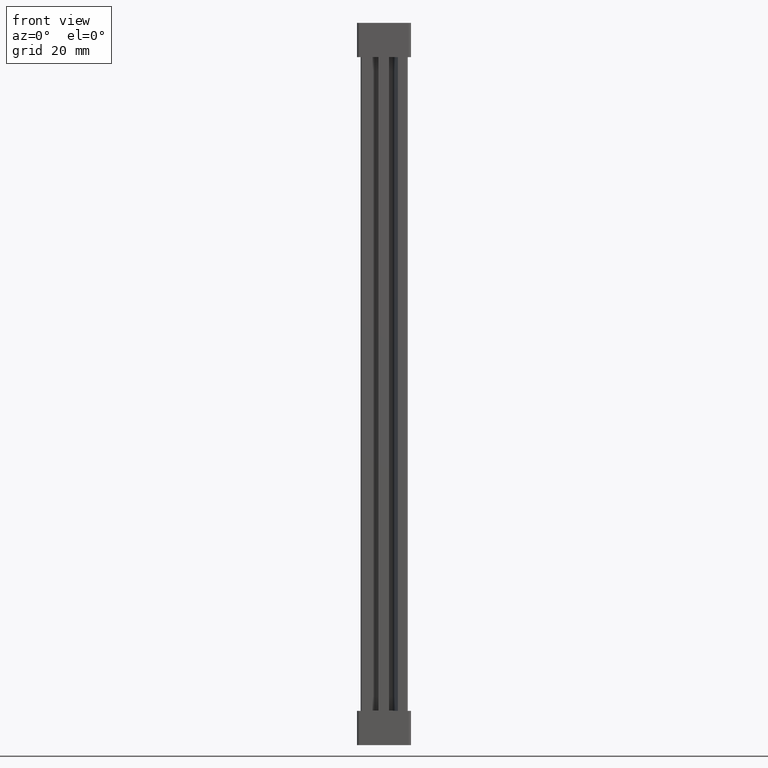
[diagram: clean part render]
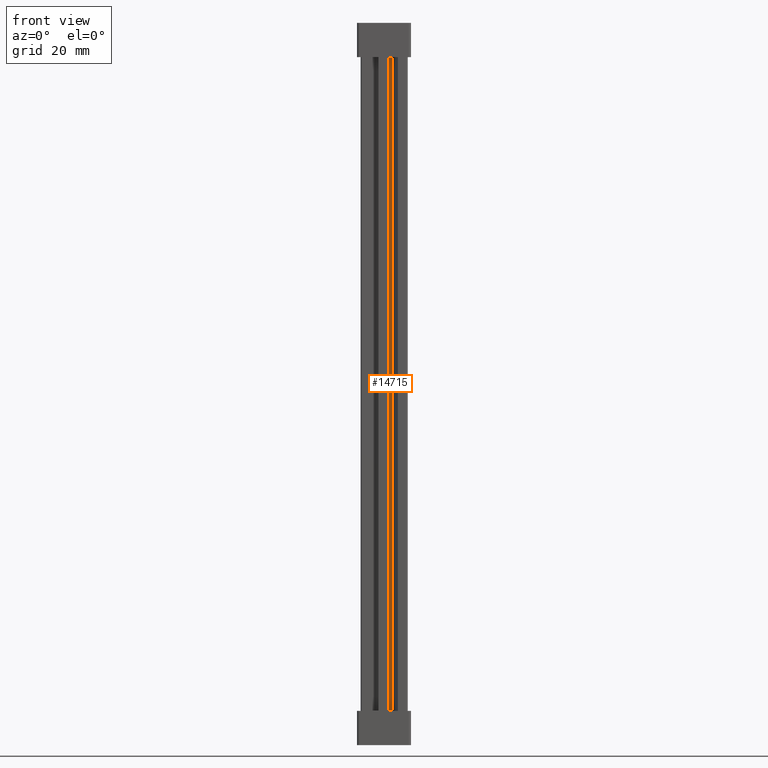
[diagram: same view with one face highlighted and labeled with its STEP entity id]
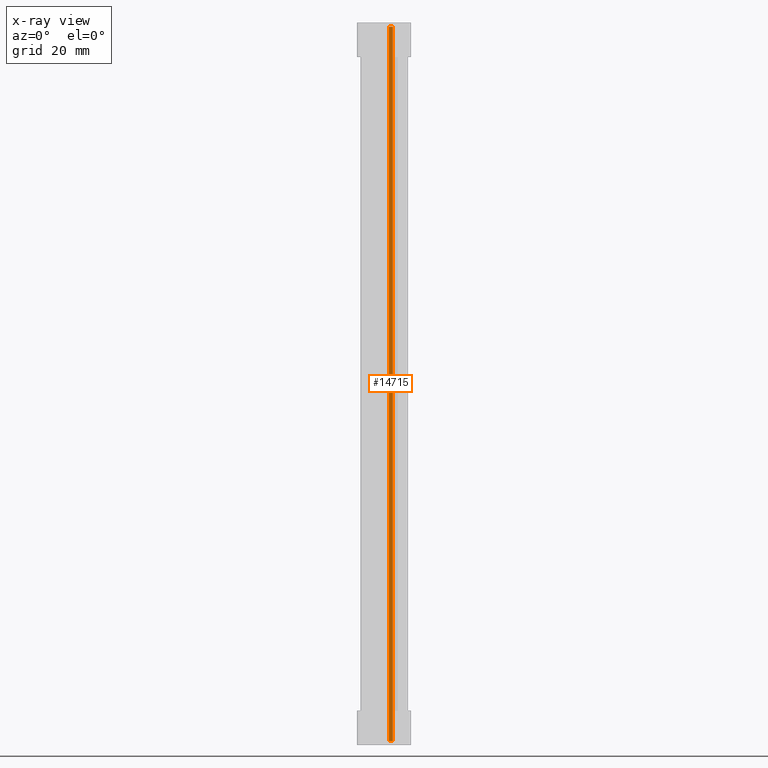
[diagram: x-ray of the same camera — body ghosted, the highlighted face saturated]
A machine part, front view. The second image highlights one B-rep face of the part: STEP entity #14715.
The next image is the same camera in x-ray: the body ghosted, the highlighted face saturated — about 0% of this face is hidden behind the body in this view.
In plain terms, the highlighted planar face has unit normal (0, 1, 0).
Its self-contained STEP definition (entity closure, byte-faithful):
#1179 = CARTESIAN_POINT ( 'NONE',  ( 9.153702168672285900, 5.673275106952144300, 217.8000000000179700 ) ) ;
#1196 = CARTESIAN_POINT ( 'NONE',  ( 7.950000000000123600, 5.673275106952147000, 217.8000000000364200 ) ) ;
#2380 = CARTESIAN_POINT ( 'NONE',  ( 7.950000000000123600, 5.673275106952147000, 1.199999999945580600 ) ) ;
#2383 = CARTESIAN_POINT ( 'NONE',  ( 9.153702168672284100, 5.673275106952147000, 1.199999999946021800 ) ) ;
#2602 = CARTESIAN_POINT ( 'NONE',  ( 6.525548534933081500, 5.673275106952147000, 220.2000000000000200 ) ) ;
#2603 = FACE_OUTER_BOUND ( 'NONE', #21069, .T. ) ;
#2607 = DIRECTION ( 'NONE',  ( 0.0000000000000000000, 1.000000000000000000, 0.0000000000000000000 ) ) ;
#2611 = DIRECTION ( 'NONE',  ( 0.0000000000000000000, -0.0000000000000000000, 1.000000000000000000 ) ) ;
#2618 = PLANE ( 'NONE',  #16963 ) ;
#4015 = LINE ( 'NONE', #4032, #18896 ) ;
#4032 = CARTESIAN_POINT ( 'NONE',  ( 13.86600000010872900, 5.673275106952147000, 217.8000000000516800 ) ) ;
#4050 = DIRECTION ( 'NONE',  ( -1.000000000000000000, -0.0000000000000000000, 4.965472477636011600E-013 ) ) ;
#4126 = DIRECTION ( 'NONE',  ( 0.0000000000000000000, 0.0000000000000000000, 1.000000000000000000 ) ) ;
#4218 = CARTESIAN_POINT ( 'NONE',  ( 6.525548534933081500, 5.673275106952147000, 1.199999999945987600 ) ) ;
#4241 = LINE ( 'NONE', #4218, #19023 ) ;
#4244 = DIRECTION ( 'NONE',  ( -1.000000000000000000, -0.0000000000000000000, 0.0000000000000000000 ) ) ;
#4483 = LINE ( 'NONE', #4493, #18981 ) ;
#4484 = LINE ( 'NONE', #4488, #19001 ) ;
#4488 = CARTESIAN_POINT ( 'NONE',  ( 9.153702168672285900, 5.673275106952145200, 220.2000000000000200 ) ) ;
#4493 = CARTESIAN_POINT ( 'NONE',  ( 7.950000000000123600, 5.673275106952147000, 220.2000000000000200 ) ) ;
#4498 = DIRECTION ( 'NONE',  ( -0.0000000000000000000, -0.0000000000000000000, -1.000000000000000000 ) ) ;
#6271 = EDGE_CURVE ( 'NONE', #11926, #11951, #4015, .T. ) ;
#6323 = EDGE_CURVE ( 'NONE', #11951, #12025, #4483, .T. ) ;
#6333 = EDGE_CURVE ( 'NONE', #12027, #11926, #4484, .T. ) ;
#6372 = EDGE_CURVE ( 'NONE', #12027, #12025, #4241, .T. ) ;
#11926 = VERTEX_POINT ( 'NONE', #1179 ) ;
#11951 = VERTEX_POINT ( 'NONE', #1196 ) ;
#12025 = VERTEX_POINT ( 'NONE', #2380 ) ;
#12027 = VERTEX_POINT ( 'NONE', #2383 ) ;
#14715 = ADVANCED_FACE ( 'NONE', ( #2603 ), #2618, .F. ) ;
#15714 = ORIENTED_EDGE ( 'NONE', *, *, #6372, .F. ) ;
#15757 = ORIENTED_EDGE ( 'NONE', *, *, #6323, .T. ) ;
#15764 = ORIENTED_EDGE ( 'NONE', *, *, #6333, .T. ) ;
#15776 = ORIENTED_EDGE ( 'NONE', *, *, #6271, .T. ) ;
#16963 = AXIS2_PLACEMENT_3D ( 'NONE', #2602, #2607, #2611 ) ;
#18896 = VECTOR ( 'NONE', #4050, 1000.000000000000000 ) ;
#18981 = VECTOR ( 'NONE', #4498, 1000.000000000000000 ) ;
#19001 = VECTOR ( 'NONE', #4126, 1000.000000000000000 ) ;
#19023 = VECTOR ( 'NONE', #4244, 1000.000000000000000 ) ;
#21069 = EDGE_LOOP ( 'NONE', ( #15757, #15714, #15764, #15776 ) ) ;